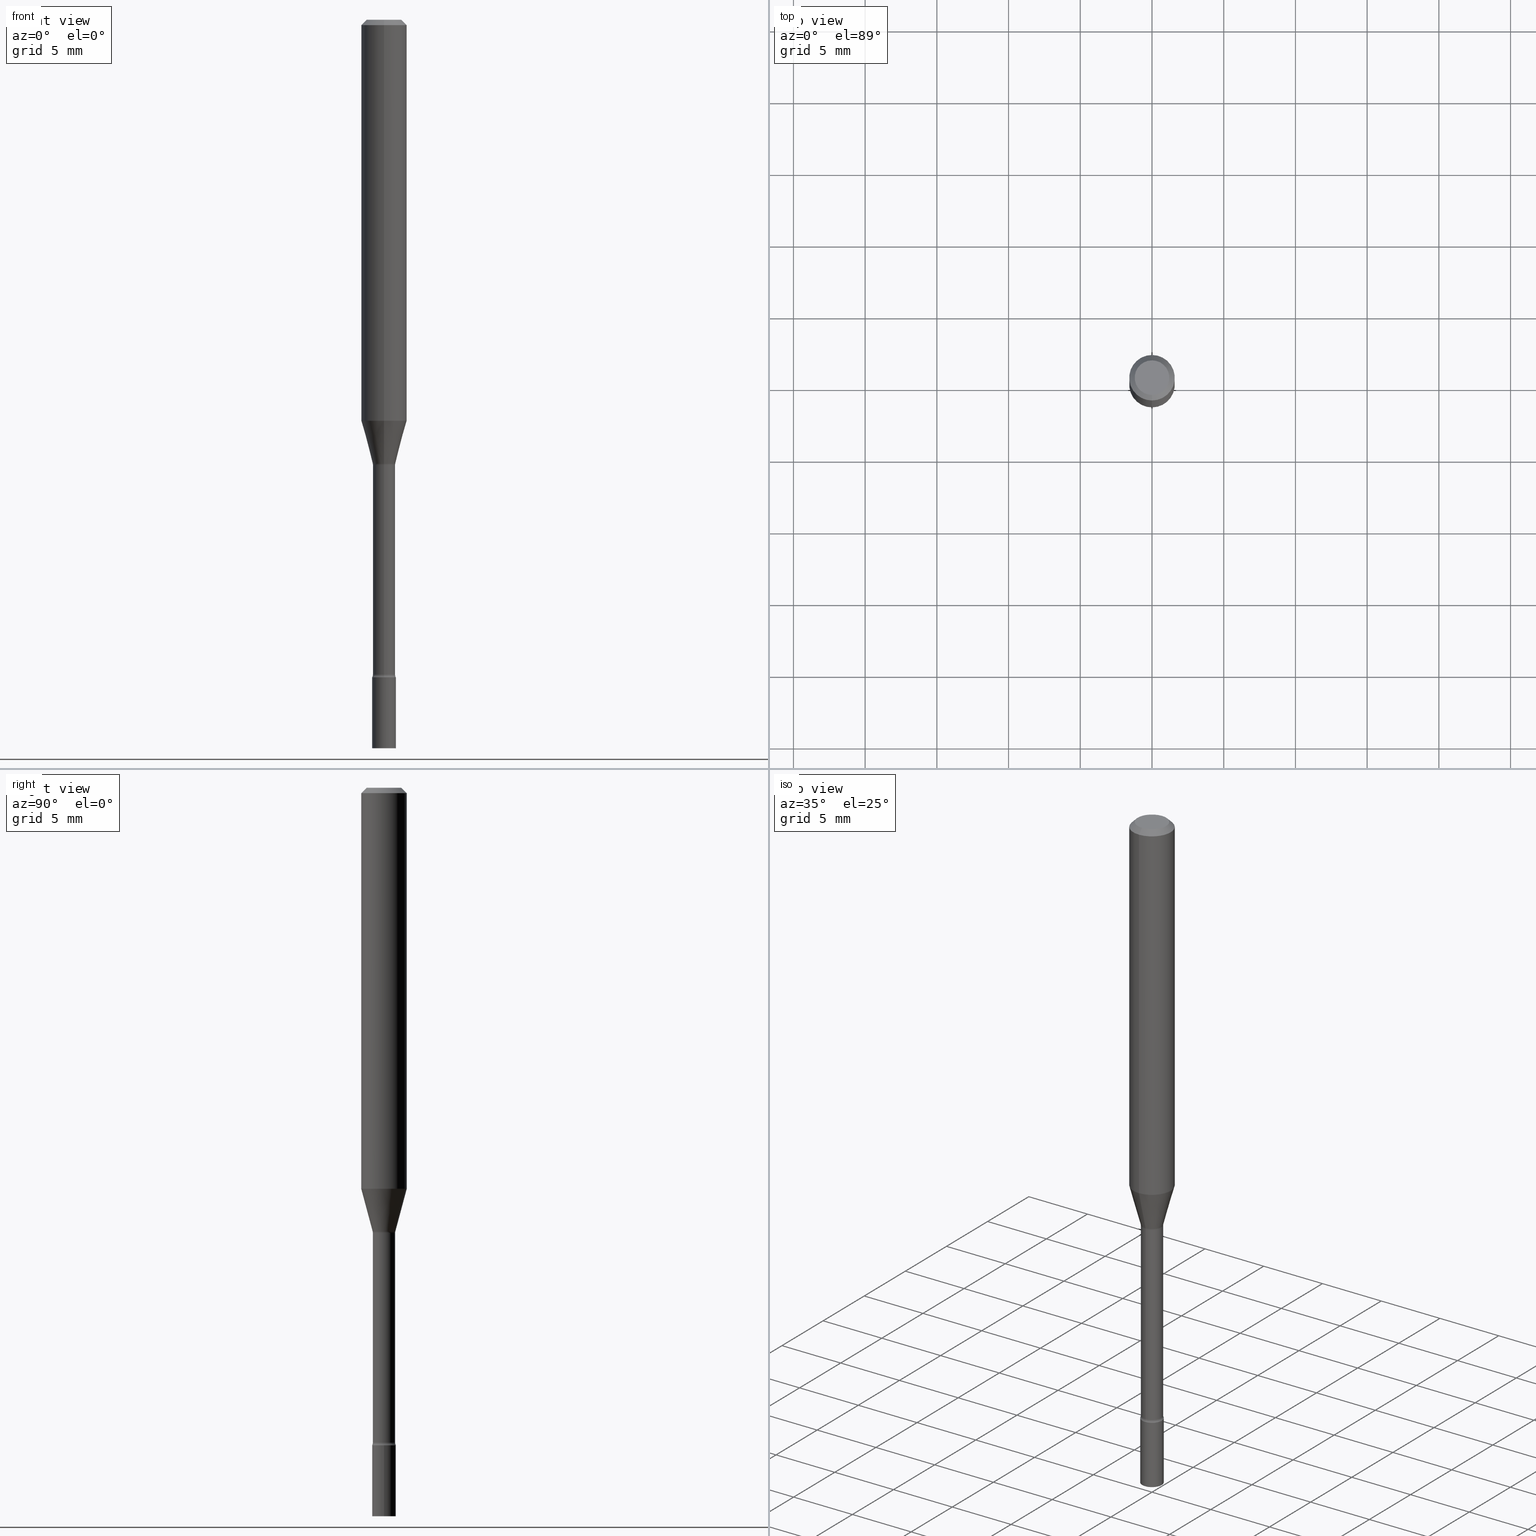
[diagram: canonical four-view strip — front | top / right | iso, engineering-drawing reading convention]
A machine part, canonical four-view strip (front | top / right | iso — engineering-drawing reading convention). The complete STEP part file that produces these views, byte-faithful:
ISO-10303-21;
HEADER;
FILE_DESCRIPTION (( 'STEP AP203' ),
    '1' );
FILE_NAME ('03441.STEP',
    '2024-03-08T21:22:37',
    ( '' ),
    ( '' ),
    'SwSTEP 2.0',
    'SolidWorks 2023',
    '' );
FILE_SCHEMA (( 'CONFIG_CONTROL_DESIGN' ));
ENDSEC;

DATA;
#1 = ORGANIZATION ( 'UNSPECIFIED', 'UNSPECIFIED', '' ) ;
#2 = EDGE_LOOP ( 'NONE', ( #224, #16 ) ) ;
#3 = EDGE_CURVE ( 'NONE', #424, #503, #83, .T. ) ;
#4 = PLANE ( 'NONE',  #487 ) ;
#5 = CARTESIAN_POINT ( 'NONE',  ( 0.000000000000000000, 0.000000000000000000, 0.000000000000000000 ) ) ;
#6 = VECTOR ( 'NONE', #183, 39.37007874015748143 ) ;
#7 = CC_DESIGN_APPROVAL ( #104, ( #442 ) ) ;
#8 = MANIFOLD_SOLID_BREP ( 'Body-Move/Copy2[1]', #360 ) ;
#9 = EDGE_CURVE ( 'NONE', #234, #75, #428, .T. ) ;
#10 = ORIENTED_EDGE ( 'NONE', *, *, #128, .T. ) ;
#11 = VERTEX_POINT ( 'NONE', #62 ) ;
#12 = AXIS2_PLACEMENT_3D ( 'NONE', #123, #423, #379 ) ;
#13 = PERSON_AND_ORGANIZATION ( #185, #1 ) ;
#14 = CARTESIAN_POINT ( 'NONE',  ( -2.269462870247595215E-16, -0.03250000000000631550, -1.804999999999999938 ) ) ;
#15 = ORIENTED_EDGE ( 'NONE', *, *, #81, .F. ) ;
#16 = ORIENTED_EDGE ( 'NONE', *, *, #508, .F. ) ;
#17 = ADVANCED_FACE ( 'NONE', ( #55 ), #166, .F. ) ;
#18 = EDGE_CURVE ( 'NONE', #424, #234, #385, .T. ) ;
#19 = DIRECTION ( 'NONE',  ( -2.445434039779886837E-29, 3.491531126314244194E-15, 1.000000000000000000 ) ) ;
#20 = AXIS2_PLACEMENT_3D ( 'NONE', #341, #261, #99 ) ;
#21 = DIRECTION ( 'NONE',  ( -2.445434039779886837E-29, 3.491531126314244194E-15, 1.000000000000000000 ) ) ;
#22 = APPROVAL_STATUS ( 'not_yet_approved' ) ;
#23 = FACE_OUTER_BOUND ( 'NONE', #24, .T. ) ;
#24 = EDGE_LOOP ( 'NONE', ( #308, #313, #98, #265 ) ) ;
#25 = CARTESIAN_POINT ( 'NONE',  ( 0.000000000000000000, 0.000000000000000000, 0.000000000000000000 ) ) ;
#26 = CARTESIAN_POINT ( 'NONE',  ( 2.207024792658399071E-16, 0.03106111260565972559, -1.218092501787273241 ) ) ;
#27 = CARTESIAN_POINT ( 'NONE',  ( 4.395985056095466653E-29, -6.276301603345288080E-15, -1.797604224178627419 ) ) ;
#28 = EDGE_CURVE ( 'NONE', #37, #490, #328, .T. ) ;
#29 = ADVANCED_FACE ( 'NONE', ( #483 ), #520, .T. ) ;
#30 = VECTOR ( 'NONE', #103, 39.37007874015748143 ) ;
#31 = AXIS2_PLACEMENT_3D ( 'NONE', #149, #317, #77 ) ;
#32 = DESIGN_CONTEXT ( 'detailed design', #402, 'design' ) ;
#33 = CARTESIAN_POINT ( 'NONE',  ( -2.133295098033156001E-16, -0.03055000000000002505, 1.066662759089002504E-16 ) ) ;
#34 = EDGE_LOOP ( 'NONE', ( #515, #129, #301, #181 ) ) ;
#35 =( NAMED_UNIT ( * ) PLANE_ANGLE_UNIT ( ) SI_UNIT ( $, .RADIAN. ) );
#36 = DIRECTION ( 'NONE',  ( 4.937700262164548042E-15, 0.7071067811865451302, -0.7071067811865499042 ) ) ;
#37 = VERTEX_POINT ( 'NONE', #69 ) ;
#38 = ADVANCED_FACE ( 'NONE', ( #230 ), #393, .T. ) ;
#39 = LINE ( 'NONE', #326, #434 ) ;
#40 = CARTESIAN_POINT ( 'NONE',  ( 0.000000000000000000, 0.000000000000000000, 0.000000000000000000 ) ) ;
#41 = DIRECTION ( 'NONE',  ( -2.445434039779886837E-29, 3.491531126314244194E-15, 1.000000000000000000 ) ) ;
#42 = DIRECTION ( 'NONE',  ( -2.445434039779886837E-29, 3.491531126314244194E-15, 1.000000000000000000 ) ) ;
#43 = APPROVAL_PERSON_ORGANIZATION ( #259, #104, #432 ) ;
#44 = EDGE_LOOP ( 'NONE', ( #463, #485 ) ) ;
#45 = ORIENTED_EDGE ( 'NONE', *, *, #508, .T. ) ;
#46 = CARTESIAN_POINT ( 'NONE',  ( 2.170708057747107601E-16, 0.03055000000000002505, -1.066662759089002504E-16 ) ) ;
#47 = AXIS2_PLACEMENT_3D ( 'NONE', #117, #188, #67 ) ;
#48 = LOCAL_TIME ( 16, 22, 37.00000000000000000, #300 ) ;
#49 = APPROVAL_ROLE ( '' ) ;
#50 = EDGE_LOOP ( 'NONE', ( #193, #141 ) ) ;
#51 = CARTESIAN_POINT ( 'NONE',  ( -4.287811248607203282E-16, -0.06250000000000005551, -0.01499999999999981209 ) ) ;
#52 = EDGE_CURVE ( 'NONE', #94, #376, #127, .T. ) ;
#53 = APPROVAL_STATUS ( 'not_yet_approved' ) ;
#54 = CARTESIAN_POINT ( 'NONE',  ( 3.668151059669837174E-31, -5.237296689471377261E-17, -0.01500000000000003067 ) ) ;
#55 = FACE_OUTER_BOUND ( 'NONE', #126, .T. ) ;
#56 = ADVANCED_FACE ( 'NONE', ( #192 ), #281, .T. ) ;
#57 = PERSON_AND_ORGANIZATION ( #185, #1 ) ;
#58 = CYLINDRICAL_SURFACE ( 'NONE', #165, 0.03055000000000002505 ) ;
#59 = CC_DESIGN_APPROVAL ( #465, ( #89 ) ) ;
#60 = AXIS2_PLACEMENT_3D ( 'NONE', #80, #325, #492 ) ;
#61 = CARTESIAN_POINT ( 'NONE',  ( 2.988301224687461483E-29, -4.266502166966714459E-15, -1.221974787463810941 ) ) ;
#62 = CARTESIAN_POINT ( 'NONE',  ( -3.773273898774340269E-16, -0.04749999999999999362, 1.369361824769347520E-16 ) ) ;
#63 = ORIENTED_EDGE ( 'NONE', *, *, #223, .T. ) ;
#64 =( CONVERSION_BASED_UNIT ( 'INCH', #359 ) LENGTH_UNIT ( ) NAMED_UNIT ( #142 ) );
#65 = ORIENTED_EDGE ( 'NONE', *, *, #138, .F. ) ;
#66 = FACE_OUTER_BOUND ( 'NONE', #214, .T. ) ;
#67 = DIRECTION ( 'NONE',  ( 6.982962677686265922E-15, 1.000000000000000000, -3.491531126314244194E-15 ) ) ;
#68 = AXIS2_PLACEMENT_3D ( 'NONE', #220, #269, #462 ) ;
#69 = CARTESIAN_POINT ( 'NONE',  ( 0.03250000000000000111, -6.529070103636681305E-15, -1.804999999999999938 ) ) ;
#70 = AXIS2_PLACEMENT_3D ( 'NONE', #351, #323, #489 ) ;
#71 = CIRCLE ( 'NONE', #408, 0.01500000000000001159 ) ;
#72 = CARTESIAN_POINT ( 'NONE',  ( 0.000000000000000000, 0.000000000000000000, 0.000000000000000000 ) ) ;
#73 = EDGE_CURVE ( 'NONE', #503, #438, #233, .T. ) ;
#74 = EDGE_CURVE ( 'NONE', #376, #133, #518, .T. ) ;
#75 = VERTEX_POINT ( 'NONE', #155 ) ;
#76 = DIRECTION ( 'NONE',  ( -1.000000000000000000, 6.982962677686265922E-15, -4.883557194083112340E-29 ) ) ;
#77 = DIRECTION ( 'NONE',  ( -6.982962677686265922E-15, -1.000000000000000000, 4.397537249142376224E-15 ) ) ;
#78 = CARTESIAN_POINT ( 'NONE',  ( 2.988258741016795853E-29, -4.266563006001128291E-15, -1.221974787463810941 ) ) ;
#79 = AXIS2_PLACEMENT_3D ( 'NONE', #196, #41, #240 ) ;
#80 = CARTESIAN_POINT ( 'NONE',  ( 0.000000000000000000, 0.000000000000000000, 0.000000000000000000 ) ) ;
#81 = EDGE_CURVE ( 'NONE', #477, #75, #315, .T. ) ;
#82 = VECTOR ( 'NONE', #211, 39.37007874015748143 ) ;
#83 = CIRCLE ( 'NONE', #310, 0.03106111260566397914 ) ;
#84 = EDGE_CURVE ( 'NONE', #94, #298, #468, .T. ) ;
#85 = ORIENTED_EDGE ( 'NONE', *, *, #9, .T. ) ;
#86 = APPROVAL_ROLE ( '' ) ;
#87 = DIRECTION ( 'NONE',  ( -6.982962677686265922E-15, -1.000000000000000000, 3.483106191921935554E-15 ) ) ;
#88 = PERSON_AND_ORGANIZATION_ROLE ( 'classification_officer' ) ;
#89 = SECURITY_CLASSIFICATION ( '', '', #374 ) ;
#90 = DIRECTION ( 'NONE',  ( -6.982962677686265922E-15, -1.000000000000000000, 3.491531126314244194E-15 ) ) ;
#91 = VECTOR ( 'NONE', #36, 39.37007874015748143 ) ;
#92 = CIRCLE ( 'NONE', #113, 0.03055000000000005628 ) ;
#93 = COORDINATED_UNIVERSAL_TIME_OFFSET ( 5, 0, .BEHIND. ) ;
#94 = VERTEX_POINT ( 'NONE', #159 ) ;
#95 = CARTESIAN_POINT ( 'NONE',  ( 0.03250000000000000111, -7.209908964711093729E-15, -2.000000000000000000 ) ) ;
#96 = CARTESIAN_POINT ( 'NONE',  ( 2.978764867471240520E-29, -4.253007884720253007E-15, -1.218092501787273019 ) ) ;
#97 = PERSON_AND_ORGANIZATION ( #185, #1 ) ;
#98 = ORIENTED_EDGE ( 'NONE', *, *, #516, .T. ) ;
#99 = DIRECTION ( 'NONE',  ( 6.982962677686265922E-15, 1.000000000000000000, -3.483106191921935554E-15 ) ) ;
#100 = DIRECTION ( 'NONE',  ( -2.445434039779886837E-29, 3.491531126314244194E-15, 1.000000000000000000 ) ) ;
#101 = COORDINATED_UNIVERSAL_TIME_OFFSET ( 5, 0, .BEHIND. ) ;
#102 = CARTESIAN_POINT ( 'NONE',  ( 2.309263891220767445E-16, 0.03249999999999371447, -1.804999999999999938 ) ) ;
#103 = DIRECTION ( 'NONE',  ( -2.445434039779886837E-29, 3.491531126314244194E-15, 1.000000000000000000 ) ) ;
#104 = APPROVAL ( #339, 'UNSPECIFIED' ) ;
#105 = ORIENTED_EDGE ( 'NONE', *, *, #431, .F. ) ;
#106 = CARTESIAN_POINT ( 'NONE',  ( -0.03250000000000000111, 2.309263891220325683E-16, -1.598653904332844407E-30 ) ) ;
#107 = PLANE ( 'NONE',  #478 ) ;
#108 = CARTESIAN_POINT ( 'NONE',  ( -3.180739499685659028E-16, -0.04555000000000634236, -1.797604224178627197 ) ) ;
#109 = LINE ( 'NONE', #392, #254 ) ;
#110 = ADVANCED_FACE ( 'NONE', ( #361 ), #4, .T. ) ;
#111 = CIRCLE ( 'NONE', #205, 0.03250000000000000111 ) ;
#112 = DIRECTION ( 'NONE',  ( -2.445468806185136597E-29, 3.491481338843145583E-15, 1.000000000000000000 ) ) ;
#113 = AXIS2_PLACEMENT_3D ( 'NONE', #504, #302, #472 ) ;
#114 = CARTESIAN_POINT ( 'NONE',  ( 4.395985056095466653E-29, -6.276301603345288080E-15, -1.797604224178627419 ) ) ;
#115 = DIRECTION ( 'NONE',  ( 1.000000000000000000, -6.982962677686265922E-15, 4.876176775795935793E-29 ) ) ;
#116 = EDGE_CURVE ( 'NONE', #234, #438, #150, .T. ) ;
#117 = CARTESIAN_POINT ( 'NONE',  ( 3.316907271900976096E-16, 0.04749999999999999362, -1.803035015114224908E-16 ) ) ;
#118 = CARTESIAN_POINT ( 'NONE',  ( -2.133295098032855247E-16, -0.03055000000000426819, -1.221974787463810719 ) ) ;
#119 = CYLINDRICAL_SURFACE ( 'NONE', #60, 0.03055000000000002505 ) ;
#120 = AXIS2_PLACEMENT_3D ( 'NONE', #72, #481, #354 ) ;
#121 = CONICAL_SURFACE ( 'NONE', #20, 0.06250000000000000000, 0.7853981633974483900 ) ;
#122 = DIRECTION ( 'NONE',  ( -2.445434039779886837E-29, 3.491531126314244194E-15, 1.000000000000000000 ) ) ;
#123 = CARTESIAN_POINT ( 'NONE',  ( 3.668151059669837174E-31, -5.237296689471377261E-17, -0.01500000000000003067 ) ) ;
#124 = PERSON_AND_ORGANIZATION_ROLE ( 'design_owner' ) ;
#125 = EDGE_CURVE ( 'NONE', #503, #133, #139, .T. ) ;
#126 = EDGE_LOOP ( 'NONE', ( #284, #415, #278, #256 ) ) ;
#127 = CIRCLE ( 'NONE', #79, 0.03055000000000005628 ) ;
#128 = EDGE_CURVE ( 'NONE', #380, #37, #39, .T. ) ;
#129 = ORIENTED_EDGE ( 'NONE', *, *, #262, .F. ) ;
#130 = DIRECTION ( 'NONE',  ( -2.445434039779886837E-29, 3.491531126314244194E-15, 1.000000000000000000 ) ) ;
#131 = ORIENTED_EDGE ( 'NONE', *, *, #52, .F. ) ;
#132 = ADVANCED_FACE ( 'NONE', ( #163 ), #119, .T. ) ;
#133 = VERTEX_POINT ( 'NONE', #118 ) ;
#134 = CARTESIAN_POINT ( 'NONE',  ( 4.890937612370273194E-29, -6.982962677686291165E-15, -2.000000000000000000 ) ) ;
#135 = EDGE_LOOP ( 'NONE', ( #105, #143, #177, #15 ) ) ;
#136 = CC_DESIGN_PERSON_AND_ORGANIZATION_ASSIGNMENT ( #172, #416, ( #484 ) ) ;
#137 = AXIS2_PLACEMENT_3D ( 'NONE', #387, #194, #482 ) ;
#138 = EDGE_CURVE ( 'NONE', #438, #234, #499, .T. ) ;
#139 = CIRCLE ( 'NONE', #453, 0.01499999999999999424 ) ;
#140 = APPROVAL_PERSON_ORGANIZATION ( #145, #331, #49 ) ;
#141 = ORIENTED_EDGE ( 'NONE', *, *, #263, .T. ) ;
#142 = DIMENSIONAL_EXPONENTS ( 1.000000000000000000, 0.000000000000000000, 0.000000000000000000, 0.000000000000000000, 0.000000000000000000, 0.000000000000000000, 0.000000000000000000 ) ;
#143 = ORIENTED_EDGE ( 'NONE', *, *, #305, .T. ) ;
#144 = CARTESIAN_POINT ( 'NONE',  ( 4.414008441802695538E-29, -6.302213682997211174E-15, -1.804999999999999938 ) ) ;
#145 = PERSON_AND_ORGANIZATION ( #185, #1 ) ;
#146 = EDGE_CURVE ( 'NONE', #133, #382, #248, .T. ) ;
#147 = ORIENTED_EDGE ( 'NONE', *, *, #3, .T. ) ;
#148 = ORIENTED_EDGE ( 'NONE', *, *, #223, .F. ) ;
#149 = CARTESIAN_POINT ( 'NONE',  ( 2.978764867471240520E-29, -4.253007884720253007E-15, -1.218092501787273019 ) ) ;
#150 = CIRCLE ( 'NONE', #70, 0.06250000000000000000 ) ;
#151 = CARTESIAN_POINT ( 'NONE',  ( 2.978764867471240520E-29, -4.253007884720253007E-15, -1.218092501787273019 ) ) ;
#152 = FACE_OUTER_BOUND ( 'NONE', #2, .T. ) ;
#153 =( NAMED_UNIT ( * ) SI_UNIT ( $, .STERADIAN. ) SOLID_ANGLE_UNIT ( ) );
#154 = DIRECTION ( 'NONE',  ( -2.445434039779886837E-29, 3.491531126314244194E-15, 1.000000000000000000 ) ) ;
#155 = CARTESIAN_POINT ( 'NONE',  ( 4.440892098500897333E-16, 0.06249999999999995837, -0.01500000000000024751 ) ) ;
#156 = ORIENTED_EDGE ( 'NONE', *, *, #52, .T. ) ;
#157 = FACE_OUTER_BOUND ( 'NONE', #267, .T. ) ;
#158 = CIRCLE ( 'NONE', #365, 0.06250000000000000000 ) ;
#159 = CARTESIAN_POINT ( 'NONE',  ( 2.239985974484158404E-16, 0.03054999999999378005, -1.797604224178627419 ) ) ;
#160 = PRODUCT_DEFINITION_SHAPE ( 'NONE', 'NONE',  #442 ) ;
#161 = ORIENTED_EDGE ( 'NONE', *, *, #377, .T. ) ;
#162 = FACE_OUTER_BOUND ( 'NONE', #44, .T. ) ;
#163 = FACE_OUTER_BOUND ( 'NONE', #273, .T. ) ;
#164 = CARTESIAN_POINT ( 'NONE',  ( 3.236522161387700589E-16, 0.04554999999999379684, -1.797604224178627641 ) ) ;
#165 = AXIS2_PLACEMENT_3D ( 'NONE', #25, #130, #90 ) ;
#166 = TOROIDAL_SURFACE ( 'NONE', #242, 0.04555000000000000021, 0.01499999999999999077 ) ;
#167 = AXIS2_PLACEMENT_3D ( 'NONE', #61, #373, #173 ) ;
#168 = ADVANCED_FACE ( 'NONE', ( #152 ), #107, .F. ) ;
#169 = EDGE_LOOP ( 'NONE', ( #459, #334, #436, #207 ) ) ;
#170 = ORIENTED_EDGE ( 'NONE', *, *, #18, .T. ) ;
#171 = AXIS2_PLACEMENT_3D ( 'NONE', #78, #42, #514 ) ;
#172 = PERSON_AND_ORGANIZATION ( #185, #1 ) ;
#173 = DIRECTION ( 'NONE',  ( -6.982962677686265922E-15, -1.000000000000000000, 3.491531126314244588E-15 ) ) ;
#174 = CALENDAR_DATE ( 2024, 8, 3 ) ;
#175 = CARTESIAN_POINT ( 'NONE',  ( -2.133295098032718676E-16, -0.03055000000000632904, -1.797604224178627419 ) ) ;
#176 = MANIFOLD_SOLID_BREP ( 'Body-Move/Copy2[2]', #510 ) ;
#177 = ORIENTED_EDGE ( 'NONE', *, *, #395, .T. ) ;
#178 = APPLICATION_PROTOCOL_DEFINITION ( 'international standard', 'config_control_design', 1994, #402 ) ;
#179 = CONICAL_SURFACE ( 'NONE', #329, 0.03106111260566397914, 0.2617993877991498519 ) ;
#180 = AXIS2_PLACEMENT_3D ( 'NONE', #5, #112, #401 ) ;
#181 = ORIENTED_EDGE ( 'NONE', *, *, #322, .T. ) ;
#182 = CARTESIAN_POINT ( 'NONE',  ( 3.236522161387554650E-16, 0.04554999999999573279, -1.221974787463810941 ) ) ;
#183 = DIRECTION ( 'NONE',  ( -4.851104656540964275E-15, -0.7071067811865500152, -0.7071067811865450192 ) ) ;
#184 = CARTESIAN_POINT ( 'NONE',  ( 2.988301224687461483E-29, -4.266502166966714459E-15, -1.221974787463810941 ) ) ;
#185 = PERSON ( 'UNSPECIFIED', 'UNSPECIFIED', 'UNSPECIFIED', ('UNSPECIFIED'), ('UNSPECIFIED'), ('UNSPECIFIED') ) ;
#186 = CARTESIAN_POINT ( 'NONE',  ( -4.364351673553647002E-16, -0.06250000000000384415, -1.100760976698174298 ) ) ;
#187 = CIRCLE ( 'NONE', #68, 0.04749999999999999362 ) ;
#188 = DIRECTION ( 'NONE',  ( 2.445434039779886557E-29, -3.491531126314244194E-15, -1.000000000000000000 ) ) ;
#189 = AXIS2_PLACEMENT_3D ( 'NONE', #27, #228, #479 ) ;
#190 = DIRECTION ( 'NONE',  ( 1.000000000000000000, -6.982962677686258033E-15, 0.000000000000000000 ) ) ;
#191 = ADVANCED_FACE ( 'NONE', ( #250 ), #210, .T. ) ;
#192 = FACE_OUTER_BOUND ( 'NONE', #421, .T. ) ;
#193 = ORIENTED_EDGE ( 'NONE', *, *, #28, .T. ) ;
#194 = DIRECTION ( 'NONE',  ( -2.445434039779886837E-29, 3.491531126314244194E-15, 1.000000000000000000 ) ) ;
#195 = DIRECTION ( 'NONE',  ( -6.982962677686265922E-15, -1.000000000000000000, 3.491531126314243799E-15 ) ) ;
#196 = CARTESIAN_POINT ( 'NONE',  ( 4.395922559858529610E-29, -6.276391101513645807E-15, -1.797604224178627419 ) ) ;
#197 = DIRECTION ( 'NONE',  ( -2.445434039779886837E-29, 3.491531126314244194E-15, 1.000000000000000000 ) ) ;
#198 = EDGE_CURVE ( 'NONE', #424, #382, #340, .T. ) ;
#199 = DIRECTION ( 'NONE',  ( 7.105427357600997914E-15, 1.000000000000000000, 0.000000000000000000 ) ) ;
#200 = ADVANCED_FACE ( 'NONE', ( #321 ), #403, .T. ) ;
#201 = CARTESIAN_POINT ( 'NONE',  ( 4.414071195164171423E-29, -6.302123816611877952E-15, -1.804999999999999938 ) ) ;
#202 = DIRECTION ( 'NONE',  ( 0.000000000000000000, 0.000000000000000000, 1.000000000000000000 ) ) ;
#203 = PRODUCT_RELATED_PRODUCT_CATEGORY ( 'detail', '', ( #236 ) ) ;
#204 = EDGE_LOOP ( 'NONE', ( #161, #501, #244, #473 ) ) ;
#205 = AXIS2_PLACEMENT_3D ( 'NONE', #445, #399, #448 ) ;
#206 = DIRECTION ( 'NONE',  ( -2.445434039779886557E-29, 3.491531126314244194E-15, 1.000000000000000000 ) ) ;
#207 = ORIENTED_EDGE ( 'NONE', *, *, #146, .T. ) ;
#208 = DATE_AND_TIME ( #174, #452 ) ;
#209 = APPROVAL_DATE_TIME ( #343, #104 ) ;
#210 = CONICAL_SURFACE ( 'NONE', #12, 0.06250000000000000000, 0.7853981633974483900 ) ;
#211 = DIRECTION ( 'NONE',  ( -2.445434039779886837E-29, 3.491531126314244194E-15, 1.000000000000000000 ) ) ;
#212 = AXIS2_PLACEMENT_3D ( 'NONE', #182, #446, #199 ) ;
#213 = SHAPE_DEFINITION_REPRESENTATION ( #160, #372 ) ;
#214 = EDGE_LOOP ( 'NONE', ( #131, #352, #45, #316 ) ) ;
#215 = DIRECTION ( 'NONE',  ( -6.982962677686265922E-15, -1.000000000000000000, 0.000000000000000000 ) ) ;
#216 = EDGE_LOOP ( 'NONE', ( #426, #85, #444, #148 ) ) ;
#217 = CARTESIAN_POINT ( 'NONE',  ( 4.414071195164171423E-29, -6.302123816611877952E-15, -1.804999999999999938 ) ) ;
#218 = ADVANCED_FACE ( 'NONE', ( #517 ), #400, .T. ) ;
#219 = ADVANCED_FACE ( 'NONE', ( #162 ), #324, .F. ) ;
#220 = CARTESIAN_POINT ( 'NONE',  ( 7.070127878728702643E-46, -1.009455628491427620E-31, -2.891154602299182995E-17 ) ) ;
#221 = DIRECTION ( 'NONE',  ( -6.982962677686265922E-15, -1.000000000000000000, 3.491531126314244588E-15 ) ) ;
#222 = DIRECTION ( 'NONE',  ( 1.000000000000000000, -6.982962677686258033E-15, 0.000000000000000000 ) ) ;
#223 = EDGE_CURVE ( 'NONE', #438, #461, #109, .T. ) ;
#224 = ORIENTED_EDGE ( 'NONE', *, *, #245, .F. ) ;
#225 = EDGE_LOOP ( 'NONE', ( #260, #336, #10, #386 ) ) ;
#226 = CARTESIAN_POINT ( 'NONE',  ( 2.978764867471240520E-29, -4.253007884720253007E-15, -1.218092501787273019 ) ) ;
#227 = ORIENTED_EDGE ( 'NONE', *, *, #451, .F. ) ;
#228 = DIRECTION ( 'NONE',  ( -2.445434039779886837E-29, 3.491531126314244194E-15, 1.000000000000000000 ) ) ;
#229 = AXIS2_PLACEMENT_3D ( 'NONE', #257, #474, #222 ) ;
#230 = FACE_OUTER_BOUND ( 'NONE', #225, .T. ) ;
#231 = ADVANCED_FACE ( 'NONE', ( #497 ), #342, .F. ) ;
#232 = CIRCLE ( 'NONE', #390, 0.03250000000000000111 ) ;
#233 = LINE ( 'NONE', #439, #366 ) ;
#234 = VERTEX_POINT ( 'NONE', #476 ) ;
#235 = LINE ( 'NONE', #106, #303 ) ;
#236 = PRODUCT ( '03441', '03441', '', ( #363 ) ) ;
#237 = DIRECTION ( 'NONE',  ( -6.982962677686265922E-15, -1.000000000000000000, 3.491531126314243799E-15 ) ) ;
#238 = DIRECTION ( 'NONE',  ( -6.982962677686266711E-15, -1.000000000000000000, 0.000000000000000000 ) ) ;
#239 = APPLICATION_PROTOCOL_DEFINITION ( 'international standard', 'config_control_design', 1994, #292 ) ;
#240 = DIRECTION ( 'NONE',  ( -6.982962677686265133E-15, -1.000000000000000000, 0.000000000000000000 ) ) ;
#241 = ORIENTED_EDGE ( 'NONE', *, *, #128, .F. ) ;
#242 = AXIS2_PLACEMENT_3D ( 'NONE', #184, #21, #221 ) ;
#243 = CARTESIAN_POINT ( 'NONE',  ( 2.691838362079070792E-29, -3.843341212773745017E-15, -1.100760976698174520 ) ) ;
#244 = ORIENTED_EDGE ( 'NONE', *, *, #146, .F. ) ;
#245 = EDGE_CURVE ( 'NONE', #368, #298, #505, .T. ) ;
#246 = CIRCLE ( 'NONE', #137, 0.04749999999999999362 ) ;
#247 = EDGE_CURVE ( 'NONE', #380, #502, #350, .T. ) ;
#248 = CIRCLE ( 'NONE', #171, 0.03055000000000000077 ) ;
#249 = ORIENTED_EDGE ( 'NONE', *, *, #466, .T. ) ;
#250 = FACE_OUTER_BOUND ( 'NONE', #34, .T. ) ;
#251 = DATE_AND_TIME ( #470, #48 ) ;
#252 = DIRECTION ( 'NONE',  ( -2.445468806185136597E-29, 3.491481338843145583E-15, 1.000000000000000000 ) ) ;
#253 = EDGE_LOOP ( 'NONE', ( #471, #458, #293, #241 ) ) ;
#254 = VECTOR ( 'NONE', #122, 39.37007874015748143 ) ;
#255 = CALENDAR_DATE ( 2024, 8, 3 ) ;
#256 = ORIENTED_EDGE ( 'NONE', *, *, #125, .F. ) ;
#257 = CARTESIAN_POINT ( 'NONE',  ( 4.890937612370273194E-29, -6.982962677686291165E-15, -2.000000000000000000 ) ) ;
#258 = AXIS2_PLACEMENT_3D ( 'NONE', #134, #252, #417 ) ;
#259 = PERSON_AND_ORGANIZATION ( #185, #1 ) ;
#260 = ORIENTED_EDGE ( 'NONE', *, *, #411, .F. ) ;
#261 = DIRECTION ( 'NONE',  ( 2.445434039779886837E-29, -3.491531126314244194E-15, -1.000000000000000000 ) ) ;
#262 = EDGE_CURVE ( 'NONE', #477, #11, #187, .T. ) ;
#263 = EDGE_CURVE ( 'NONE', #490, #37, #232, .T. ) ;
#264 = PERSON_AND_ORGANIZATION ( #185, #1 ) ;
#265 = ORIENTED_EDGE ( 'NONE', *, *, #245, .T. ) ;
#266 = DIRECTION ( 'NONE',  ( -6.982962677686265922E-15, -1.000000000000000000, 3.483106191921935554E-15 ) ) ;
#267 = EDGE_LOOP ( 'NONE', ( #306, #147, #355, #464 ) ) ;
#268 = DATE_AND_TIME ( #371, #418 ) ;
#269 = DIRECTION ( 'NONE',  ( -2.445434039779886837E-29, 3.491531126314244194E-15, 1.000000000000000000 ) ) ;
#270 = DIRECTION ( 'NONE',  ( -2.445434039779886837E-29, 3.491531126314244194E-15, 1.000000000000000000 ) ) ;
#271 = EDGE_CURVE ( 'NONE', #502, #380, #318, .T. ) ;
#272 = CARTESIAN_POINT ( 'NONE',  ( 2.269462870248477753E-16, 0.03249999999999370059, -1.804999999999999938 ) ) ;
#273 = EDGE_LOOP ( 'NONE', ( #296, #156, #282, #227 ) ) ;
#274 = CARTESIAN_POINT ( 'NONE',  ( -0.03250000000000000111, -6.411616858027052188E-15, -2.000000000000000000 ) ) ;
#275 =( GEOMETRIC_REPRESENTATION_CONTEXT ( 3 ) GLOBAL_UNCERTAINTY_ASSIGNED_CONTEXT ( ( #288 ) ) GLOBAL_UNIT_ASSIGNED_CONTEXT ( ( #64, #35, #153 ) ) REPRESENTATION_CONTEXT ( 'NONE', 'WORKASPACE' ) );
#276 = DIRECTION ( 'NONE',  ( 2.438088387897960049E-29, -3.491481338843145188E-15, -1.000000000000000000 ) ) ;
#277 = LOCAL_TIME ( 16, 22, 37.00000000000000000, #93 ) ;
#278 = ORIENTED_EDGE ( 'NONE', *, *, #451, .T. ) ;
#279 = CARTESIAN_POINT ( 'NONE',  ( 3.840629472727447874E-16, 0.04749999999999999362, -1.947592745229184365E-16 ) ) ;
#280 = DIRECTION ( 'NONE',  ( -2.445434039779886837E-29, 3.491531126314244194E-15, 1.000000000000000000 ) ) ;
#281 = PLANE ( 'NONE',  #410 ) ;
#282 = ORIENTED_EDGE ( 'NONE', *, *, #74, .T. ) ;
#283 = DIRECTION ( 'NONE',  ( -6.982962677686265922E-15, -1.000000000000000000, 4.370956789862821150E-15 ) ) ;
#284 = ORIENTED_EDGE ( 'NONE', *, *, #3, .F. ) ;
#285 = CARTESIAN_POINT ( 'NONE',  ( 2.269462870248525577E-16, 0.03249999999999301364, -2.000000000000000000 ) ) ;
#286 = AXIS2_PLACEMENT_3D ( 'NONE', #488, #280, #237 ) ;
#287 = AXIS2_PLACEMENT_3D ( 'NONE', #309, #348, #513 ) ;
#288 = UNCERTAINTY_MEASURE_WITH_UNIT (LENGTH_MEASURE( 1.000000000000000082E-05 ), #64, 'distance_accuracy_value', 'NONE');
#289 = AXIS2_PLACEMENT_3D ( 'NONE', #144, #507, #215 ) ;
#290 = EDGE_LOOP ( 'NONE', ( #249, #170, #65, #344 ) ) ;
#291 = VECTOR ( 'NONE', #449, 39.37007874015748143 ) ;
#292 = APPLICATION_CONTEXT ( 'configuration controlled 3d designs of mechanical parts and assemblies' ) ;
#293 = ORIENTED_EDGE ( 'NONE', *, *, #28, .F. ) ;
#294 = ADVANCED_FACE ( 'NONE', ( #335 ), #58, .T. ) ;
#295 = DATE_TIME_ROLE ( 'classification_date' ) ;
#296 = ORIENTED_EDGE ( 'NONE', *, *, #364, .F. ) ;
#297 = DIRECTION ( 'NONE',  ( -2.445434039779886837E-29, 3.491531126314244194E-15, 1.000000000000000000 ) ) ;
#298 = VERTEX_POINT ( 'NONE', #102 ) ;
#299 = AXIS2_PLACEMENT_3D ( 'NONE', #346, #297, #87 ) ;
#300 = COORDINATED_UNIVERSAL_TIME_OFFSET ( 5, 0, .BEHIND. ) ;
#301 = ORIENTED_EDGE ( 'NONE', *, *, #81, .T. ) ;
#302 = DIRECTION ( 'NONE',  ( -2.445434039779886837E-29, 3.491531126314244194E-15, 1.000000000000000000 ) ) ;
#303 = VECTOR ( 'NONE', #519, 39.37007874015748143 ) ;
#304 = CC_DESIGN_PERSON_AND_ORGANIZATION_ASSIGNMENT ( #264, #307, ( #484 ) ) ;
#305 = EDGE_CURVE ( 'NONE', #11, #461, #435, .T. ) ;
#306 = ORIENTED_EDGE ( 'NONE', *, *, #18, .F. ) ;
#307 = PERSON_AND_ORGANIZATION_ROLE ( 'design_supplier' ) ;
#308 = ORIENTED_EDGE ( 'NONE', *, *, #84, .F. ) ;
#309 = CARTESIAN_POINT ( 'NONE',  ( 2.988258741016795853E-29, -4.266563006001128291E-15, -1.221974787463810941 ) ) ;
#310 = AXIS2_PLACEMENT_3D ( 'NONE', #96, #100, #413 ) ;
#311 = DIRECTION ( 'NONE',  ( -6.982962677686265922E-15, -1.000000000000000000, 4.397537249142376224E-15 ) ) ;
#312 = DIRECTION ( 'NONE',  ( -2.445468806185136597E-29, 3.491481338843145583E-15, 1.000000000000000000 ) ) ;
#313 = ORIENTED_EDGE ( 'NONE', *, *, #377, .F. ) ;
#314 = CARTESIAN_POINT ( 'NONE',  ( -4.364351673553912750E-16, -0.06250000000000005551, -0.01499999999999981209 ) ) ;
#315 = LINE ( 'NONE', #443, #91 ) ;
#316 = ORIENTED_EDGE ( 'NONE', *, *, #516, .F. ) ;
#317 = DIRECTION ( 'NONE',  ( -2.445434039779886837E-29, 3.491531126314244194E-15, 1.000000000000000000 ) ) ;
#318 = CIRCLE ( 'NONE', #258, 0.03250000000000000111 ) ;
#319 = ADVANCED_FACE ( 'NONE', ( #383 ), #121, .T. ) ;
#320 = CC_DESIGN_DATE_AND_TIME_ASSIGNMENT ( #268, #295, ( #89 ) ) ;
#321 = FACE_OUTER_BOUND ( 'NONE', #358, .T. ) ;
#322 = EDGE_CURVE ( 'NONE', #75, #461, #506, .T. ) ;
#323 = DIRECTION ( 'NONE',  ( -2.445434039779886837E-29, 3.491531126314244194E-15, 1.000000000000000000 ) ) ;
#324 = PLANE ( 'NONE',  #47 ) ;
#325 = DIRECTION ( 'NONE',  ( -2.445434039779886837E-29, 3.491531126314244194E-15, 1.000000000000000000 ) ) ;
#326 = CARTESIAN_POINT ( 'NONE',  ( 0.03250000000000000111, -2.269462870248036484E-16, 1.584757452133678993E-30 ) ) ;
#327 = CIRCLE ( 'NONE', #412, 0.03106111260566397914 ) ;
#328 = CIRCLE ( 'NONE', #349, 0.03250000000000000111 ) ;
#329 = AXIS2_PLACEMENT_3D ( 'NONE', #226, #270, #440 ) ;
#330 = ORIENTED_EDGE ( 'NONE', *, *, #9, .F. ) ;
#331 = APPROVAL ( #53, 'UNSPECIFIED' ) ;
#332 = VECTOR ( 'NONE', #347, 39.37007874015748854 ) ;
#333 = COORDINATED_UNIVERSAL_TIME_OFFSET ( 5, 0, .BEHIND. ) ;
#334 = ORIENTED_EDGE ( 'NONE', *, *, #466, .F. ) ;
#335 = FACE_OUTER_BOUND ( 'NONE', #204, .T. ) ;
#336 = ORIENTED_EDGE ( 'NONE', *, *, #271, .T. ) ;
#337 = DIRECTION ( 'NONE',  ( 1.000000000000000000, -6.982962677686258033E-15, 0.000000000000000000 ) ) ;
#338 = ORIENTED_EDGE ( 'NONE', *, *, #322, .F. ) ;
#339 = APPROVAL_STATUS ( 'not_yet_approved' ) ;
#340 = CIRCLE ( 'NONE', #212, 0.01499999999999999424 ) ;
#341 = CARTESIAN_POINT ( 'NONE',  ( 3.668151059669837174E-31, -5.237296689471377261E-17, -0.01500000000000003067 ) ) ;
#342 = TOROIDAL_SURFACE ( 'NONE', #167, 0.04555000000000000021, 0.01499999999999999077 ) ;
#343 = DATE_AND_TIME ( #460, #277 ) ;
#344 = ORIENTED_EDGE ( 'NONE', *, *, #73, .F. ) ;
#345 = ORIENTED_EDGE ( 'NONE', *, *, #271, .F. ) ;
#346 = CARTESIAN_POINT ( 'NONE',  ( 3.668151059669837174E-31, -5.237296689471377261E-17, -0.01500000000000003067 ) ) ;
#347 = DIRECTION ( 'NONE',  ( 1.839019923739597160E-15, 0.2588190451025245142, 0.9659258262890670910 ) ) ;
#348 = DIRECTION ( 'NONE',  ( -2.445434039779886837E-29, 3.491531126314244194E-15, 1.000000000000000000 ) ) ;
#349 = AXIS2_PLACEMENT_3D ( 'NONE', #512, #312, #190 ) ;
#350 = CIRCLE ( 'NONE', #229, 0.03250000000000000111 ) ;
#351 = CARTESIAN_POINT ( 'NONE',  ( 2.691838362079070792E-29, -3.843341212773745017E-15, -1.100760976698174520 ) ) ;
#352 = ORIENTED_EDGE ( 'NONE', *, *, #84, .T. ) ;
#353 = FACE_OUTER_BOUND ( 'NONE', #290, .T. ) ;
#354 = DIRECTION ( 'NONE',  ( 1.000000000000000000, -6.982962677686265922E-15, 4.876176775795935232E-29 ) ) ;
#355 = ORIENTED_EDGE ( 'NONE', *, *, #73, .T. ) ;
#356 = CARTESIAN_POINT ( 'NONE',  ( 3.323958445579647462E-16, 0.03106111260565972559, -1.218092501787273241 ) ) ;
#357 = DIRECTION ( 'NONE',  ( -1.000000000000000000, 6.982962677686265922E-15, -4.876176775795935793E-29 ) ) ;
#358 = EDGE_LOOP ( 'NONE', ( #330, #430, #63, #338 ) ) ;
#359 = LENGTH_MEASURE_WITH_UNIT ( LENGTH_MEASURE( 0.02539999999999999897 ), #511 );
#360 = CLOSED_SHELL ( 'NONE', ( #29, #110, #38, #56 ) ) ;
#361 = FACE_OUTER_BOUND ( 'NONE', #50, .T. ) ;
#362 = DIRECTION ( 'NONE',  ( 1.000000000000000000, -7.105427357601001070E-15, 4.926316118262753834E-29 ) ) ;
#363 = MECHANICAL_CONTEXT ( 'NONE', #292, 'mechanical' ) ;
#364 = EDGE_CURVE ( 'NONE', #94, #382, #375, .T. ) ;
#365 = AXIS2_PLACEMENT_3D ( 'NONE', #54, #19, #266 ) ;
#366 = VECTOR ( 'NONE', #397, 39.37007874015748143 ) ;
#367 = LOCAL_TIME ( 16, 22, 37.00000000000000000, #333 ) ;
#368 = VERTEX_POINT ( 'NONE', #14 ) ;
#369 = CC_DESIGN_PERSON_AND_ORGANIZATION_ASSIGNMENT ( #57, #88, ( #89 ) ) ;
#370 = APPROVAL_DATE_TIME ( #208, #465 ) ;
#371 = CALENDAR_DATE ( 2024, 8, 3 ) ;
#372 = ADVANCED_BREP_SHAPE_REPRESENTATION ( '03441', ( #8, #176, #469 ), #275 ) ;
#373 = DIRECTION ( 'NONE',  ( -2.445434039779886837E-29, 3.491531126314244194E-15, 1.000000000000000000 ) ) ;
#374 = SECURITY_CLASSIFICATION_LEVEL ( 'unclassified' ) ;
#375 = LINE ( 'NONE', #46, #82 ) ;
#376 = VERTEX_POINT ( 'NONE', #175 ) ;
#377 = EDGE_CURVE ( 'NONE', #376, #94, #92, .T. ) ;
#378 = DIRECTION ( 'NONE',  ( -2.445468806185136597E-29, 3.491481338843145583E-15, 1.000000000000000000 ) ) ;
#379 = DIRECTION ( 'NONE',  ( 6.982962677686265922E-15, 1.000000000000000000, -3.483106191921935554E-15 ) ) ;
#380 = VERTEX_POINT ( 'NONE', #95 ) ;
#381 = TOROIDAL_SURFACE ( 'NONE', #467, 0.04555000000000006960, 0.01500000000000001506 ) ;
#382 = VERTEX_POINT ( 'NONE', #427 ) ;
#383 = FACE_OUTER_BOUND ( 'NONE', #135, .T. ) ;
#384 = ORIENTED_EDGE ( 'NONE', *, *, #247, .F. ) ;
#385 = LINE ( 'NONE', #26, #332 ) ;
#386 = ORIENTED_EDGE ( 'NONE', *, *, #263, .F. ) ;
#387 = CARTESIAN_POINT ( 'NONE',  ( 7.070127878728702643E-46, -1.009455628491427620E-31, -2.891154602299182995E-17 ) ) ;
#388 = CARTESIAN_POINT ( 'NONE',  ( 0.000000000000000000, 0.000000000000000000, 0.000000000000000000 ) ) ;
#389 = CARTESIAN_POINT ( 'NONE',  ( 4.440892098500625669E-16, 0.06250000000000000000, -2.182206953946402375E-16 ) ) ;
#390 = AXIS2_PLACEMENT_3D ( 'NONE', #217, #378, #337 ) ;
#391 = DIRECTION ( 'NONE',  ( -6.982962677686266711E-15, -1.000000000000000000, 0.000000000000000000 ) ) ;
#392 = CARTESIAN_POINT ( 'NONE',  ( -4.364351673553916201E-16, -0.06250000000000000000, 2.182206953946402375E-16 ) ) ;
#393 = CYLINDRICAL_SURFACE ( 'NONE', #120, 0.03250000000000000111 ) ;
#394 = CC_DESIGN_PERSON_AND_ORGANIZATION_ASSIGNMENT ( #496, #124, ( #236 ) ) ;
#395 = EDGE_CURVE ( 'NONE', #461, #75, #158, .T. ) ;
#396 = DIRECTION ( 'NONE',  ( -6.982962677686265922E-15, -1.000000000000000000, 3.491531126314243799E-15 ) ) ;
#397 = DIRECTION ( 'NONE',  ( -1.807323732225327378E-15, -0.2588190451025177974, 0.9659258262890690894 ) ) ;
#398 = ADVANCED_FACE ( 'NONE', ( #23 ), #420, .F. ) ;
#399 = DIRECTION ( 'NONE',  ( -2.445434039779886837E-29, 3.491531126314244194E-15, 1.000000000000000000 ) ) ;
#400 = CYLINDRICAL_SURFACE ( 'NONE', #419, 0.06250000000000000000 ) ;
#401 = DIRECTION ( 'NONE',  ( 1.000000000000000000, -6.982962677686265922E-15, 4.876176775795935232E-29 ) ) ;
#402 = APPLICATION_CONTEXT ( 'configuration controlled 3d designs of mechanical parts and assemblies' ) ;
#403 = CYLINDRICAL_SURFACE ( 'NONE', #286, 0.06250000000000000000 ) ;
#404 = AXIS2_PLACEMENT_3D ( 'NONE', #243, #406, #283 ) ;
#405 = DIRECTION ( 'NONE',  ( -2.438088387897960049E-29, 3.491481338843145188E-15, 1.000000000000000000 ) ) ;
#406 = DIRECTION ( 'NONE',  ( -2.445434039779886837E-29, 3.491531126314244194E-15, 1.000000000000000000 ) ) ;
#407 = DIRECTION ( 'NONE',  ( 1.000000000000000000, 0.000000000000000000, 0.000000000000000000 ) ) ;
#408 = AXIS2_PLACEMENT_3D ( 'NONE', #108, #480, #391 ) ;
#409 = CC_DESIGN_SECURITY_CLASSIFICATION ( #89, ( #484 ) ) ;
#410 = AXIS2_PLACEMENT_3D ( 'NONE', #285, #276, #357 ) ;
#411 = EDGE_CURVE ( 'NONE', #502, #490, #235, .T. ) ;
#412 = AXIS2_PLACEMENT_3D ( 'NONE', #151, #486, #311 ) ;
#413 = DIRECTION ( 'NONE',  ( -6.982962677686265922E-15, -1.000000000000000000, 4.397537249142376224E-15 ) ) ;
#414 = ADVANCED_FACE ( 'NONE', ( #66 ), #381, .F. ) ;
#415 = ORIENTED_EDGE ( 'NONE', *, *, #198, .T. ) ;
#416 = PERSON_AND_ORGANIZATION_ROLE ( 'creator' ) ;
#417 = DIRECTION ( 'NONE',  ( 1.000000000000000000, -6.982962677686258033E-15, 0.000000000000000000 ) ) ;
#418 = LOCAL_TIME ( 16, 22, 37.00000000000000000, #101 ) ;
#419 = AXIS2_PLACEMENT_3D ( 'NONE', #388, #154, #195 ) ;
#420 = TOROIDAL_SURFACE ( 'NONE', #189, 0.04555000000000006960, 0.01500000000000001506 ) ;
#421 = EDGE_LOOP ( 'NONE', ( #384, #345 ) ) ;
#422 = CC_DESIGN_PERSON_AND_ORGANIZATION_ASSIGNMENT ( #13, #509, ( #442 ) ) ;
#423 = DIRECTION ( 'NONE',  ( 2.445434039779886837E-29, -3.491531126314244194E-15, -1.000000000000000000 ) ) ;
#424 = VERTEX_POINT ( 'NONE', #356 ) ;
#425 = DATE_TIME_ROLE ( 'creation_date' ) ;
#426 = ORIENTED_EDGE ( 'NONE', *, *, #138, .T. ) ;
#427 = CARTESIAN_POINT ( 'NONE',  ( 2.170708057747546898E-16, 0.03054999999999572988, -1.221974787463810941 ) ) ;
#428 = LINE ( 'NONE', #389, #30 ) ;
#429 = COORDINATED_UNIVERSAL_TIME_OFFSET ( 5, 0, .BEHIND. ) ;
#430 = ORIENTED_EDGE ( 'NONE', *, *, #116, .T. ) ;
#431 = EDGE_CURVE ( 'NONE', #11, #477, #246, .T. ) ;
#432 = APPROVAL_ROLE ( '' ) ;
#433 = ADVANCED_FACE ( 'NONE', ( #157 ), #495, .T. ) ;
#434 = VECTOR ( 'NONE', #493, 39.37007874015748143 ) ;
#435 = LINE ( 'NONE', #51, #6 ) ;
#436 = ORIENTED_EDGE ( 'NONE', *, *, #125, .T. ) ;
#437 = CARTESIAN_POINT ( 'NONE',  ( -0.03250000000000000111, -6.411616858027052188E-15, -1.804999999999999938 ) ) ;
#438 = VERTEX_POINT ( 'NONE', #186 ) ;
#439 = CARTESIAN_POINT ( 'NONE',  ( -2.168985900527321632E-16, -0.03106111260566822921, -1.218092501787273019 ) ) ;
#440 = DIRECTION ( 'NONE',  ( -6.982962677686265922E-15, -1.000000000000000000, 4.397537249142376224E-15 ) ) ;
#441 = CC_DESIGN_APPROVAL ( #331, ( #484 ) ) ;
#442 = PRODUCT_DEFINITION ( 'UNKNOWN', '', #484, #32 ) ;
#443 = CARTESIAN_POINT ( 'NONE',  ( 4.364351673553919652E-16, 0.06249999999999995143, -0.01500000000000024751 ) ) ;
#444 = ORIENTED_EDGE ( 'NONE', *, *, #395, .F. ) ;
#445 = CARTESIAN_POINT ( 'NONE',  ( 4.414008441802695538E-29, -6.302213682997211174E-15, -1.804999999999999938 ) ) ;
#446 = DIRECTION ( 'NONE',  ( 1.000000000000000000, -7.105427357601001070E-15, 4.926316118262753834E-29 ) ) ;
#447 = DIRECTION ( 'NONE',  ( 7.105427357601001859E-15, 1.000000000000000000, 0.000000000000000000 ) ) ;
#448 = DIRECTION ( 'NONE',  ( -6.982962677686265922E-15, -1.000000000000000000, 0.000000000000000000 ) ) ;
#449 = DIRECTION ( 'NONE',  ( -2.445434039779886837E-29, 3.491531126314244194E-15, 1.000000000000000000 ) ) ;
#450 = CC_DESIGN_DATE_AND_TIME_ASSIGNMENT ( #500, #425, ( #442 ) ) ;
#451 = EDGE_CURVE ( 'NONE', #382, #133, #494, .T. ) ;
#452 = LOCAL_TIME ( 16, 22, 37.00000000000000000, #429 ) ;
#453 = AXIS2_PLACEMENT_3D ( 'NONE', #454, #76, #238 ) ;
#454 = CARTESIAN_POINT ( 'NONE',  ( -3.180739499685795106E-16, -0.04555000000000426763, -1.221974787463810719 ) ) ;
#455 = ADVANCED_FACE ( 'NONE', ( #353 ), #179, .T. ) ;
#456 = APPROVAL_PERSON_ORGANIZATION ( #97, #465, #86 ) ;
#457 = AXIS2_PLACEMENT_3D ( 'NONE', #164, #362, #447 ) ;
#458 = ORIENTED_EDGE ( 'NONE', *, *, #411, .T. ) ;
#459 = ORIENTED_EDGE ( 'NONE', *, *, #198, .F. ) ;
#460 = CALENDAR_DATE ( 2024, 8, 3 ) ;
#461 = VERTEX_POINT ( 'NONE', #314 ) ;
#462 = DIRECTION ( 'NONE',  ( -6.982962677686266711E-15, -1.000000000000000000, 3.491531126314244588E-15 ) ) ;
#463 = ORIENTED_EDGE ( 'NONE', *, *, #262, .T. ) ;
#464 = ORIENTED_EDGE ( 'NONE', *, *, #116, .F. ) ;
#465 = APPROVAL ( #22, 'UNSPECIFIED' ) ;
#466 = EDGE_CURVE ( 'NONE', #503, #424, #327, .T. ) ;
#467 = AXIS2_PLACEMENT_3D ( 'NONE', #114, #197, #396 ) ;
#468 = CIRCLE ( 'NONE', #457, 0.01500000000000001159 ) ;
#469 = AXIS2_PLACEMENT_3D ( 'NONE', #40, #202, #407 ) ;
#470 = CALENDAR_DATE ( 2024, 8, 3 ) ;
#471 = ORIENTED_EDGE ( 'NONE', *, *, #247, .T. ) ;
#472 = DIRECTION ( 'NONE',  ( -6.982962677686265133E-15, -1.000000000000000000, 0.000000000000000000 ) ) ;
#473 = ORIENTED_EDGE ( 'NONE', *, *, #74, .F. ) ;
#474 = DIRECTION ( 'NONE',  ( -2.445468806185136597E-29, 3.491481338843145583E-15, 1.000000000000000000 ) ) ;
#475 = APPROVAL_DATE_TIME ( #251, #331 ) ;
#476 = CARTESIAN_POINT ( 'NONE',  ( 4.440892098500895360E-16, 0.06249999999999617667, -1.100760976698174742 ) ) ;
#477 = VERTEX_POINT ( 'NONE', #279 ) ;
#478 = AXIS2_PLACEMENT_3D ( 'NONE', #272, #206, #498 ) ;
#479 = DIRECTION ( 'NONE',  ( -6.982962677686265922E-15, -1.000000000000000000, 3.491531126314243799E-15 ) ) ;
#480 = DIRECTION ( 'NONE',  ( -1.000000000000000000, 6.982962677686265922E-15, -4.883557194083112340E-29 ) ) ;
#481 = DIRECTION ( 'NONE',  ( -2.445468806185136597E-29, 3.491481338843145583E-15, 1.000000000000000000 ) ) ;
#482 = DIRECTION ( 'NONE',  ( -6.982962677686266711E-15, -1.000000000000000000, 3.491531126314244588E-15 ) ) ;
#483 = FACE_OUTER_BOUND ( 'NONE', #253, .T. ) ;
#484 = PRODUCT_DEFINITION_FORMATION_WITH_SPECIFIED_SOURCE ( 'ANY', '', #236, .NOT_KNOWN. ) ;
#485 = ORIENTED_EDGE ( 'NONE', *, *, #431, .T. ) ;
#486 = DIRECTION ( 'NONE',  ( -2.445434039779886837E-29, 3.491531126314244194E-15, 1.000000000000000000 ) ) ;
#487 = AXIS2_PLACEMENT_3D ( 'NONE', #201, #405, #115 ) ;
#488 = CARTESIAN_POINT ( 'NONE',  ( 0.000000000000000000, 0.000000000000000000, 0.000000000000000000 ) ) ;
#489 = DIRECTION ( 'NONE',  ( -6.982962677686265922E-15, -1.000000000000000000, 4.370956789862821150E-15 ) ) ;
#490 = VERTEX_POINT ( 'NONE', #437 ) ;
#491 = CARTESIAN_POINT ( 'NONE',  ( -2.168985900527321632E-16, -0.03106111260566822921, -1.218092501787273019 ) ) ;
#492 = DIRECTION ( 'NONE',  ( -6.982962677686265922E-15, -1.000000000000000000, 3.491531126314244194E-15 ) ) ;
#493 = DIRECTION ( 'NONE',  ( -2.445468806185136877E-29, 3.491481338843145188E-15, 1.000000000000000000 ) ) ;
#494 = CIRCLE ( 'NONE', #287, 0.03055000000000000077 ) ;
#495 = CONICAL_SURFACE ( 'NONE', #31, 0.03106111260566397914, 0.2617993877991498519 ) ;
#496 = PERSON_AND_ORGANIZATION ( #185, #1 ) ;
#497 = FACE_OUTER_BOUND ( 'NONE', #169, .T. ) ;
#498 = DIRECTION ( 'NONE',  ( -6.982962677686265922E-15, -1.000000000000000000, 3.491531126314244194E-15 ) ) ;
#499 = CIRCLE ( 'NONE', #404, 0.06250000000000000000 ) ;
#500 = DATE_AND_TIME ( #255, #367 ) ;
#501 = ORIENTED_EDGE ( 'NONE', *, *, #364, .T. ) ;
#502 = VERTEX_POINT ( 'NONE', #274 ) ;
#503 = VERTEX_POINT ( 'NONE', #491 ) ;
#504 = CARTESIAN_POINT ( 'NONE',  ( 4.395922559858529610E-29, -6.276391101513645807E-15, -1.797604224178627419 ) ) ;
#505 = CIRCLE ( 'NONE', #289, 0.03250000000000000111 ) ;
#506 = CIRCLE ( 'NONE', #299, 0.06250000000000000000 ) ;
#507 = DIRECTION ( 'NONE',  ( -2.445434039779886837E-29, 3.491531126314244194E-15, 1.000000000000000000 ) ) ;
#508 = EDGE_CURVE ( 'NONE', #298, #368, #111, .T. ) ;
#509 = PERSON_AND_ORGANIZATION_ROLE ( 'creator' ) ;
#510 = CLOSED_SHELL ( 'NONE', ( #17, #294, #414, #319, #218, #455, #433, #200, #191, #219, #168, #398, #132, #231 ) ) ;
#511 =( LENGTH_UNIT ( ) NAMED_UNIT ( * ) SI_UNIT ( $, .METRE. ) );
#512 = CARTESIAN_POINT ( 'NONE',  ( 4.414071195164171423E-29, -6.302123816611877952E-15, -1.804999999999999938 ) ) ;
#513 = DIRECTION ( 'NONE',  ( -6.982962677686265133E-15, -1.000000000000000000, 4.471109645931690737E-15 ) ) ;
#514 = DIRECTION ( 'NONE',  ( -6.982962677686265133E-15, -1.000000000000000000, 4.471109645931690737E-15 ) ) ;
#515 = ORIENTED_EDGE ( 'NONE', *, *, #305, .F. ) ;
#516 = EDGE_CURVE ( 'NONE', #376, #368, #71, .T. ) ;
#517 = FACE_OUTER_BOUND ( 'NONE', #216, .T. ) ;
#518 = LINE ( 'NONE', #33, #291 ) ;
#519 = DIRECTION ( 'NONE',  ( -2.445468806185136877E-29, 3.491481338843145188E-15, 1.000000000000000000 ) ) ;
#520 = CYLINDRICAL_SURFACE ( 'NONE', #180, 0.03250000000000000111 ) ;
ENDSEC;
END-ISO-10303-21;
